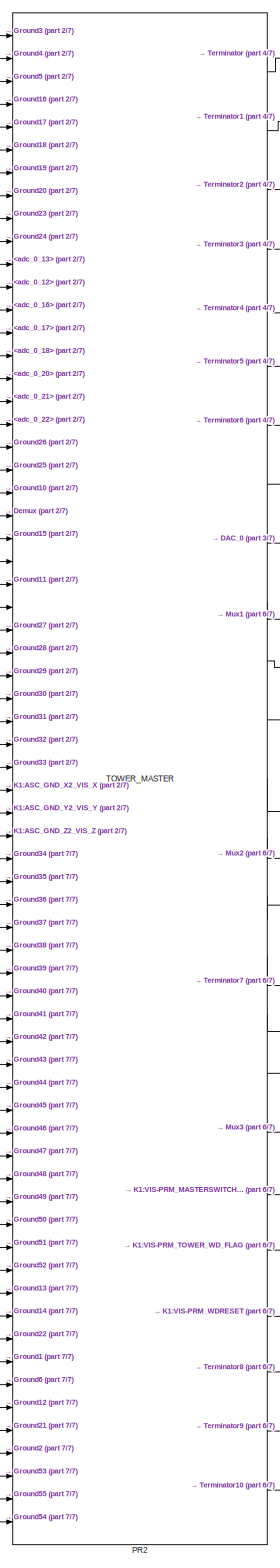
[diagram: root canvas - part 1/7, left side, full height]
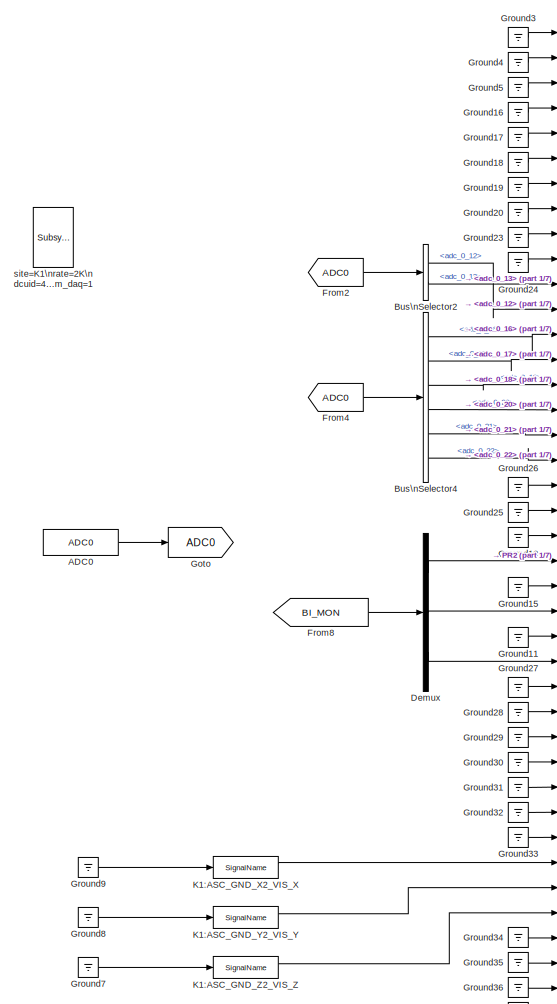
[diagram: root canvas - part 2/7, top left region]
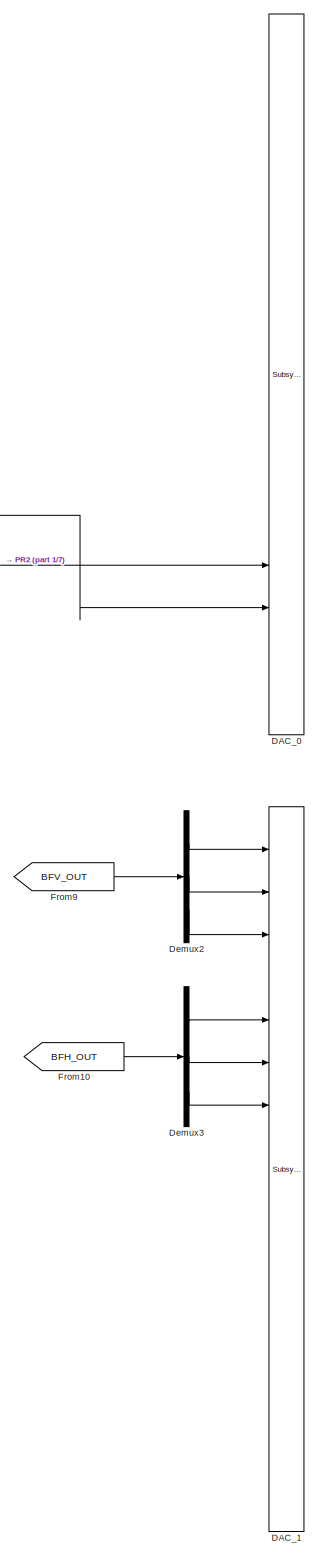
[diagram: root canvas - part 3/7, center side, full height]
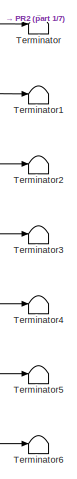
[diagram: root canvas - part 4/7, top left region]
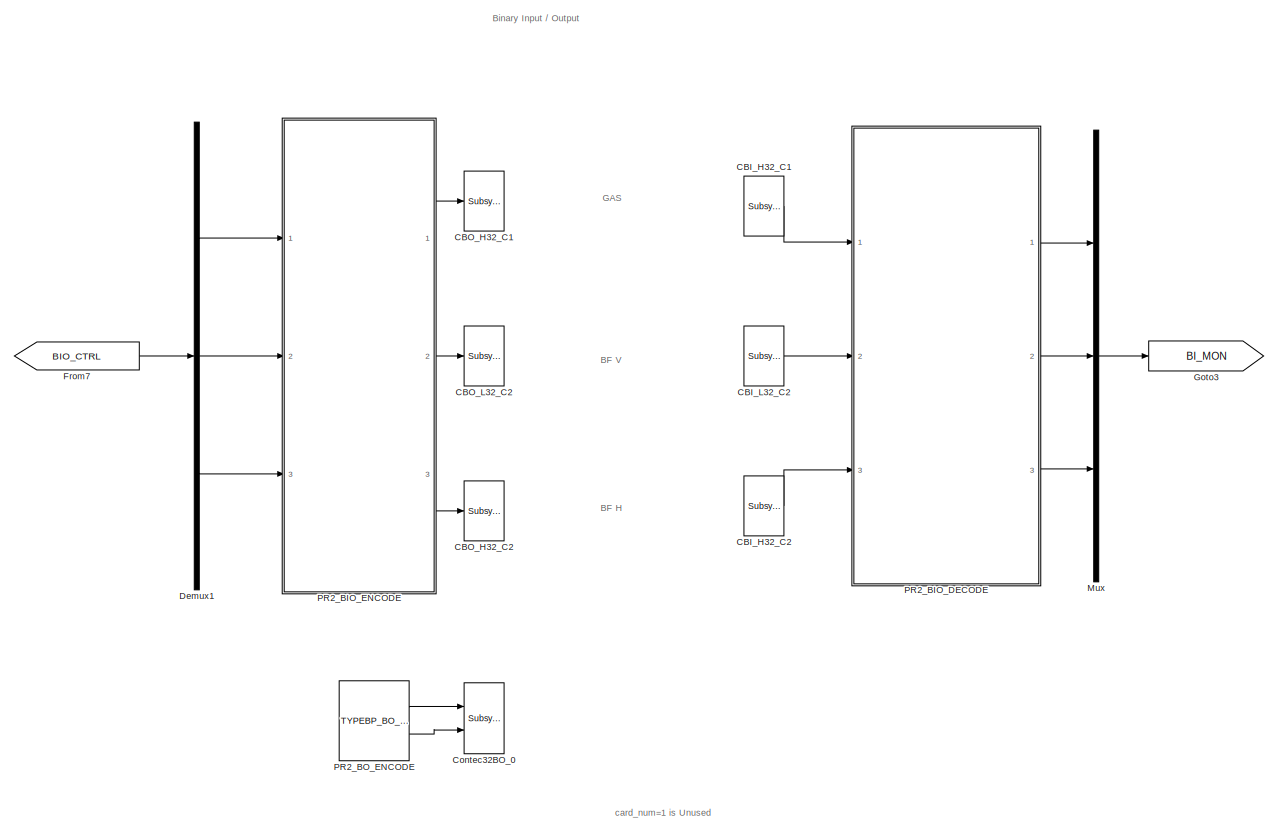
[diagram: root canvas - part 5/7, middle right region]
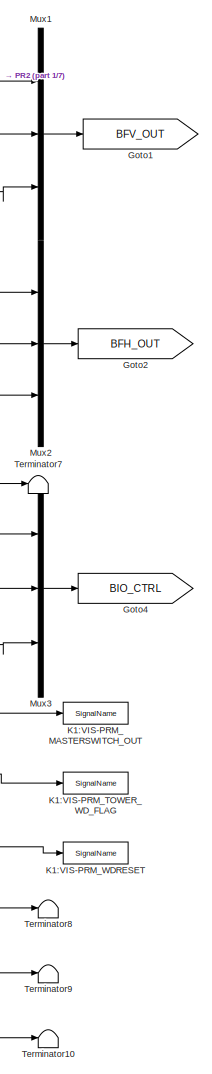
[diagram: root canvas - part 6/7, central region]
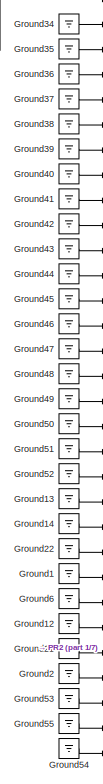
[diagram: root canvas - part 7/7, bottom left region]
MODEL k1vispr2t
KIND model
BLOCK [Reference] ADC0  REF=cdsAdcx0/ADC0
  AttributesFormatString = %<Description>\\n%<Tag>
  Description = type-GSC_16AI64SSA\ncard_num=0
  Ports = [0, 1]
  SID = 5115
  SourceBlock = cdsAdcx0/ADC0
  SourceType = SubSystem
  Tag = cdsAdc
BLOCK [BusSelector] Bus\nSelector2
  AttributesFormatString = %<Description>
  Description = ADC Selector
  OutputSignals = adc_0_12,adc_0_13
  Ports = [1, 2]
  SID = 5241
BLOCK [BusSelector] Bus\nSelector4
  AttributesFormatString = %<Description>
  Description = ADC Selector
  OutputSignals = adc_0_16,adc_0_17,adc_0_18,adc_0_20,adc_0_21,adc_0_22
  Ports = [1, 6]
  SID = 5243
BLOCK [Reference] CBI_H32_C1  REF=cdsCDI64/Subsystem
  AttributesFormatString = %<Tag>\\n%<Description>
  Description = card_num=3
  Ports = [0, 1]
  SID = 5272
  SourceBlock = cdsCDI64/Subsystem
  SourceType = SubSystem
  Tag = cdsCDI64
BLOCK [Reference] CBI_H32_C2  REF=cdsCDI64/Subsystem
  AttributesFormatString = %<Tag>\\n%<Description>
  Description = card_num=5
  Ports = [0, 1]
  SID = 5273
  SourceBlock = cdsCDI64/Subsystem
  SourceType = SubSystem
  Tag = cdsCDI64
BLOCK [Reference] CBI_L32_C2  REF=cdsCDI64/Subsystem
  AttributesFormatString = %<Tag>\\n%<Description>
  Description = card_num=4
  Ports = [0, 1]
  SID = 5275
  SourceBlock = cdsCDI64/Subsystem
  SourceType = SubSystem
  Tag = cdsCDI64
BLOCK [Reference] CBO_H32_C1  REF=cdsCDO64/Subsystem
  AttributesFormatString = %<Tag>\\n%<Description>
  Description = card_num=3
  Ports = [1]
  SID = 5277
  SourceBlock = cdsCDO64/Subsystem
  SourceType = SubSystem
  Tag = cdsCDO64
BLOCK [Reference] CBO_H32_C2  REF=cdsCDO64/Subsystem
  AttributesFormatString = %<Tag>\\n%<Description>
  Description = card_num=5
  Ports = [1]
  SID = 5278
  SourceBlock = cdsCDO64/Subsystem
  SourceType = SubSystem
  Tag = cdsCDO64
BLOCK [Reference] CBO_L32_C2  REF=cdsCDO64/Subsystem
  AttributesFormatString = %<Tag>\\n%<Description>
  Description = card_num=4
  Ports = [1]
  SID = 5280
  SourceBlock = cdsCDO64/Subsystem
  SourceType = SubSystem
  Tag = cdsCDO64
BLOCK [Reference] Contec32BO_0  REF=cdsCDO32/Subsystem
  AttributesFormatString = %<Tag>
  Description = Contec32 bit binary output module driver
  Ports = [2]
  SID = 5841
  SourceBlock = cdsCDO32/Subsystem
  SourceType = SubSystem
  Tag = cdsCDO32
BLOCK [Reference] DAC_0  REF=dac/Subsystem  (lib defined in slx_40ef132df75b, slx_b7657ccccc5b, +4 more)
  AttributesFormatString = %<Description>
  Description = type=GSC_16AO16,\ncard_num=0
  Ports = [16]
  SID = 5126
  SourceBlock = dac/Subsystem
  SourceType = SubSystem
BLOCK [Reference] DAC_1  REF=dac/Subsystem  (lib defined in slx_40ef132df75b, slx_b7657ccccc5b, +4 more)
  AttributesFormatString = %<Description>
  Description = type=GSC_16AO16,\ncard_num=1
  Ports = [16]
  SID = 5127
  SourceBlock = dac/Subsystem
  SourceType = SubSystem
BLOCK [Demux] Demux
  DisplayOption = bar
  Outputs = 3
  Ports = [1, 3]
  SID = 5246
BLOCK [Demux] Demux1
  DisplayOption = bar
  Outputs = 3
  Ports = [1, 3]
  SID = 5281
BLOCK [Demux] Demux2
  DisplayOption = bar
  Outputs = 3
  Ports = [1, 3]
  SID = 5236
BLOCK [Demux] Demux3
  DisplayOption = bar
  Outputs = 3
  Ports = [1, 3]
  SID = 5238
BLOCK [From] From10
  GotoTag = BFH_OUT
  SID = 5239
BLOCK [From] From2
  GotoTag = ADC0
  SID = 5248
BLOCK [From] From4
  GotoTag = ADC0
  SID = 5250
BLOCK [From] From7
  GotoTag = BIO_CTRL
  SID = 5282
BLOCK [From] From8
  GotoTag = BI_MON
  SID = 5253
BLOCK [From] From9
  GotoTag = BFV_OUT
  SID = 5237
BLOCK [Goto] Goto
  GotoTag = ADC0
  SID = 5134
BLOCK [Goto] Goto1
  GotoTag = BFV_OUT
  SID = 5265
BLOCK [Goto] Goto2
  GotoTag = BFH_OUT
  SID = 5266
BLOCK [Goto] Goto3
  GotoTag = BI_MON
  SID = 5283
BLOCK [Goto] Goto4
  GotoTag = BIO_CTRL
  SID = 5267
BLOCK [Ground] Ground1
  SID = 6658
BLOCK [Ground] Ground10
  SID = 5255
BLOCK [Ground] Ground11
  SID = 5256
BLOCK [Ground] Ground12
  SID = 6660
BLOCK [Ground] Ground13
  SID = 6661
BLOCK [Ground] Ground14
  SID = 6662
BLOCK [Ground] Ground15
  SID = 5264
BLOCK [Ground] Ground16
  SID = 6671
BLOCK [Ground] Ground17
  SID = 6672
BLOCK [Ground] Ground18
  SID = 6673
BLOCK [Ground] Ground19
  SID = 6674
BLOCK [Ground] Ground2
  SID = 5914
BLOCK [Ground] Ground20
  SID = 6675
BLOCK [Ground] Ground21
  SID = 5915
BLOCK [Ground] Ground22
  SID = 6663
BLOCK [Ground] Ground23
  SID = 6676
BLOCK [Ground] Ground24
  SID = 6677
BLOCK [Ground] Ground25
  SID = 6678
BLOCK [Ground] Ground26
  SID = 6679
BLOCK [Ground] Ground27
  SID = 6680
BLOCK [Ground] Ground28
  SID = 6681
BLOCK [Ground] Ground29
  SID = 6682
BLOCK [Ground] Ground3
  SID = 6668
BLOCK [Ground] Ground30
  SID = 6683
BLOCK [Ground] Ground31
  SID = 6684
BLOCK [Ground] Ground32
  SID = 6685
BLOCK [Ground] Ground33
  SID = 6686
BLOCK [Ground] Ground34
  SID = 6687
BLOCK [Ground] Ground35
  SID = 6688
BLOCK [Ground] Ground36
  SID = 6689
BLOCK [Ground] Ground37
  SID = 6690
BLOCK [Ground] Ground38
  SID = 6691
BLOCK [Ground] Ground39
  SID = 6692
BLOCK [Ground] Ground4
  SID = 6669
BLOCK [Ground] Ground40
  SID = 6693
BLOCK [Ground] Ground41
  SID = 6694
BLOCK [Ground] Ground42
  SID = 6695
BLOCK [Ground] Ground43
  SID = 6696
BLOCK [Ground] Ground44
  SID = 6697
BLOCK [Ground] Ground45
  SID = 6698
BLOCK [Ground] Ground46
  SID = 6699
BLOCK [Ground] Ground47
  SID = 6700
BLOCK [Ground] Ground48
  SID = 6701
BLOCK [Ground] Ground49
  SID = 6702
BLOCK [Ground] Ground5
  SID = 6670
BLOCK [Ground] Ground50
  SID = 6703
BLOCK [Ground] Ground51
  SID = 6704
BLOCK [Ground] Ground52
  SID = 6705
BLOCK [Ground] Ground53
  SID = 6714
BLOCK [Ground] Ground54
  SID = 6715
BLOCK [Ground] Ground55
  SID = 6716
BLOCK [Ground] Ground6
  SID = 6659
BLOCK [Ground] Ground7
  SID = 5822
BLOCK [Ground] Ground8
  SID = 5823
BLOCK [Ground] Ground9
  SID = 5824
BLOCK [Reference] K1:ASC_GND_X2_VIS_X  REF=cdsIPCx/SignalName
  AttributesFormatString = %<Tag>
  Description = Inter-Process Communication via PCI Express network.
  Ports = [1, 2]
  SID = 5828
  SourceBlock = cdsIPCx/SignalName
  SourceType = SubSystem
  Tag = cdsIPCx_PCIE
BLOCK [Reference] K1:ASC_GND_Y2_VIS_Y  REF=cdsIPCx/SignalName
  AttributesFormatString = %<Tag>
  Description = Inter-Process Communication via PCI Express network.
  Ports = [1, 2]
  SID = 5829
  SourceBlock = cdsIPCx/SignalName
  SourceType = SubSystem
  Tag = cdsIPCx_PCIE
BLOCK [Reference] K1:ASC_GND_Z2_VIS_Z  REF=cdsIPCx/SignalName
  AttributesFormatString = %<Tag>
  Description = Inter-Process Communication via PCI Express network.
  Ports = [1, 2]
  SID = 5830
  SourceBlock = cdsIPCx/SignalName
  SourceType = SubSystem
  Tag = cdsIPCx_PCIE
BLOCK [Reference] K1:VIS-PRM_MASTERSWITCH_OUT  REF=cdsIPCx/SignalName
  AttributesFormatString = %<Tag>
  Description = Inter-Process Communication via Shared memory.
  Ports = [1, 2]
  SID = 6664
  SourceBlock = cdsIPCx/SignalName
  SourceType = SubSystem
  Tag = cdsIPCx_SHMEM
BLOCK [Reference] K1:VIS-PRM_TOWER_WD_FLAG  REF=cdsIPCx/SignalName
  AttributesFormatString = %<Tag>
  Description = Inter-Process Communication via Shared memory.
  Ports = [1, 2]
  SID = 6665
  SourceBlock = cdsIPCx/SignalName
  SourceType = SubSystem
  Tag = cdsIPCx_SHMEM
BLOCK [Reference] K1:VIS-PRM_WDRESET  REF=cdsIPCx/SignalName
  AttributesFormatString = %<Tag>
  Description = Inter-Process Communication via Shared memory.
  Ports = [1, 2]
  SID = 6666
  SourceBlock = cdsIPCx/SignalName
  SourceType = SubSystem
  Tag = cdsIPCx_SHMEM
BLOCK [Mux] Mux
  DisplayOption = bar
  Inputs = 3
  Ports = [3, 1]
  SID = 5285
BLOCK [Mux] Mux1
  DisplayOption = bar
  Inputs = 3
  Ports = [3, 1]
  SID = 5268
BLOCK [Mux] Mux2
  DisplayOption = bar
  Inputs = 3
  Ports = [3, 1]
  SID = 5269
BLOCK [Mux] Mux3
  DisplayOption = bar
  Inputs = 3
  Ports = [3, 1]
  SID = 5270
BLOCK [Reference] PR2  REF=TOWER_MASTER/TOWER_MASTER
  Ports = [66, 25]
  SID = 6667
  SourceBlock = TOWER_MASTER/TOWER_MASTER
  SourceType = SubSystem
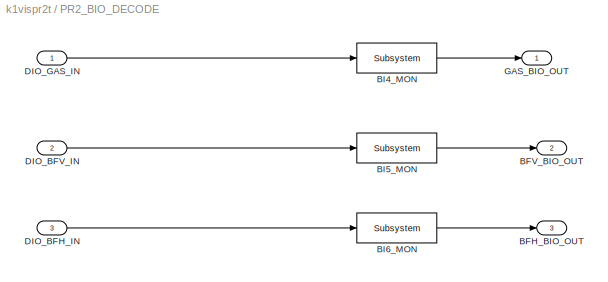
BLOCK [SubSystem] PR2_BIO_DECODE
  Ports = [3, 3]
  RequestExecContextInheritance = off
  SID = 5286
  Variant = off
BLOCK [Outport] PR2_BIO_DECODE/BFH_BIO_OUT
  IconDisplay = Port number
  Port = 3
  SID = 5304
BLOCK [Outport] PR2_BIO_DECODE/BFV_BIO_OUT
  IconDisplay = Port number
  Port = 2
  SID = 5303
BLOCK [Reference] PR2_BIO_DECODE/BI4_MON  REF=cdsEpicsOut/Subsystem
  AttributesFormatString = %<Tag>
  Description = Purpose:                                          \nOutput a FE signal to an EPICS channel.           \n                                                  \nOperation:                                        \nTakes input value and passes it to EPICS record.  \n                                                  \nUsage:                                            \nName the part with the desired EPICS...<+14ch>  <repeated x6 — deduplicated; at blocks: BI4_MON, BI5_MON, BI6_MON, DIO_3_OUT, DIO_4_OUT, DIO_4_OUT1>
  Ports = [1, 1]
  SID = 5296
  SourceBlock = cdsEpicsOut/Subsystem
  SourceType = SubSystem
  Tag = cdsEpicsOutput
BLOCK [Reference] PR2_BIO_DECODE/BI5_MON  REF=cdsEpicsOut/Subsystem
  AttributesFormatString = %<Tag>
  Ports = [1, 1]
  SID = 5297
  SourceBlock = cdsEpicsOut/Subsystem
  SourceType = SubSystem
  Tag = cdsEpicsOutput
BLOCK [Reference] PR2_BIO_DECODE/BI6_MON  REF=cdsEpicsOut/Subsystem
  AttributesFormatString = %<Tag>
  Ports = [1, 1]
  SID = 5298
  SourceBlock = cdsEpicsOut/Subsystem
  SourceType = SubSystem
  Tag = cdsEpicsOutput
BLOCK [Inport] PR2_BIO_DECODE/DIO_BFH_IN
  IconDisplay = Port number
  Port = 3
  SID = 5292
BLOCK [Inport] PR2_BIO_DECODE/DIO_BFV_IN
  IconDisplay = Port number
  Port = 2
  SID = 5291
BLOCK [Inport] PR2_BIO_DECODE/DIO_GAS_IN
  IconDisplay = Port number
  SID = 5290
BLOCK [Outport] PR2_BIO_DECODE/GAS_BIO_OUT
  IconDisplay = Port number
  SID = 5302
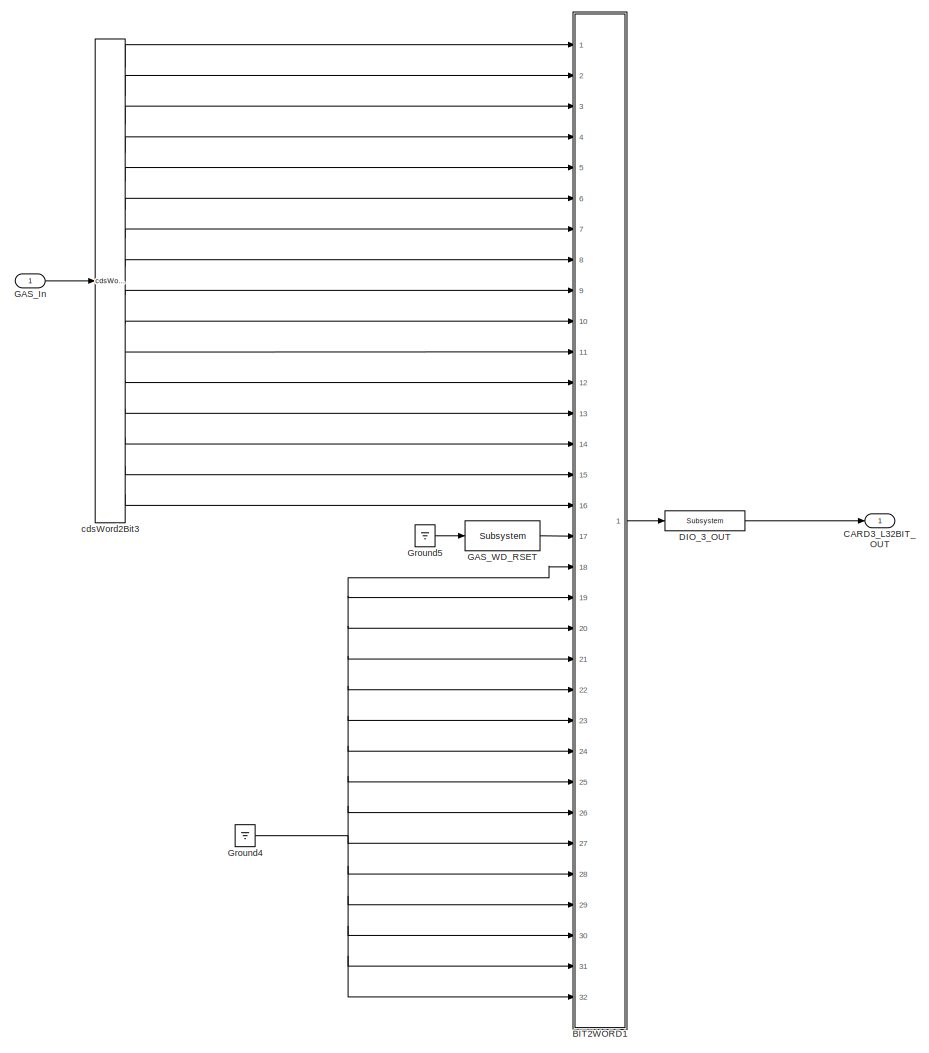
[diagram: PR2_BIO_ENCODE - part 1/3, top right region]
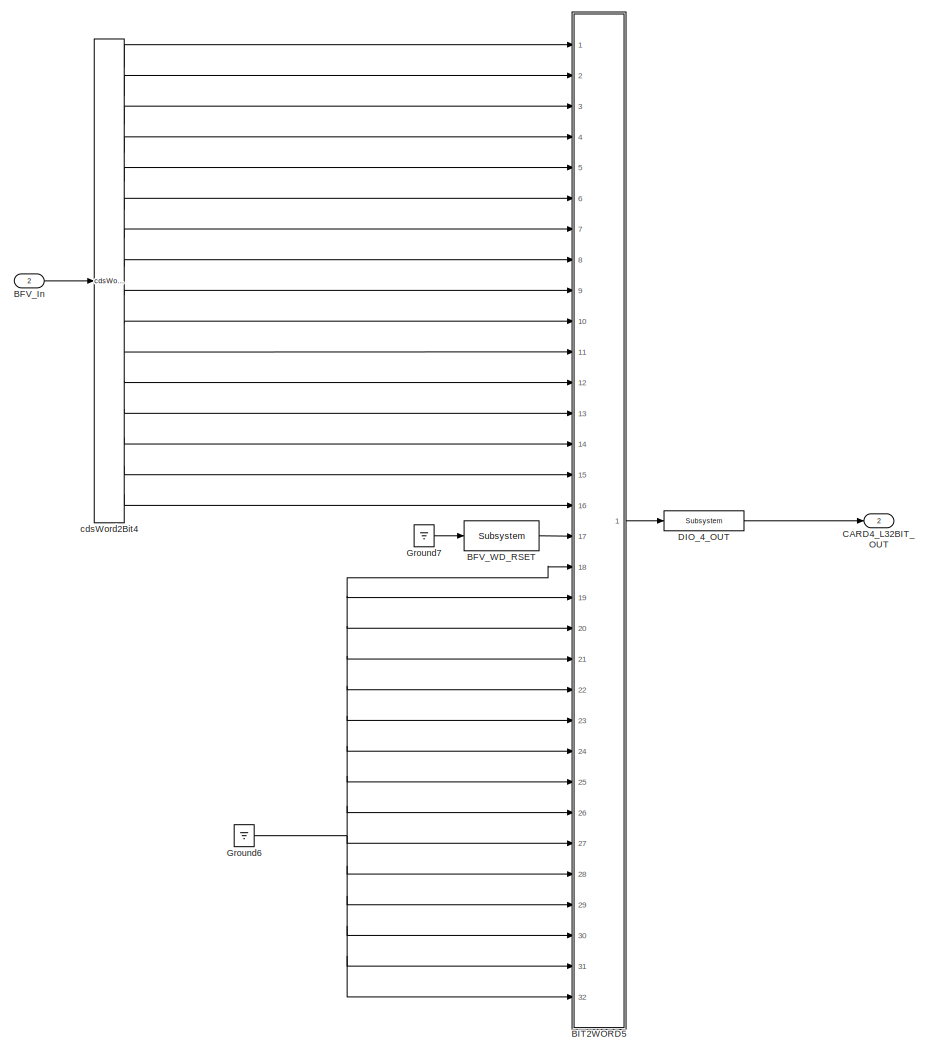
[diagram: PR2_BIO_ENCODE - part 2/3, bottom right region]
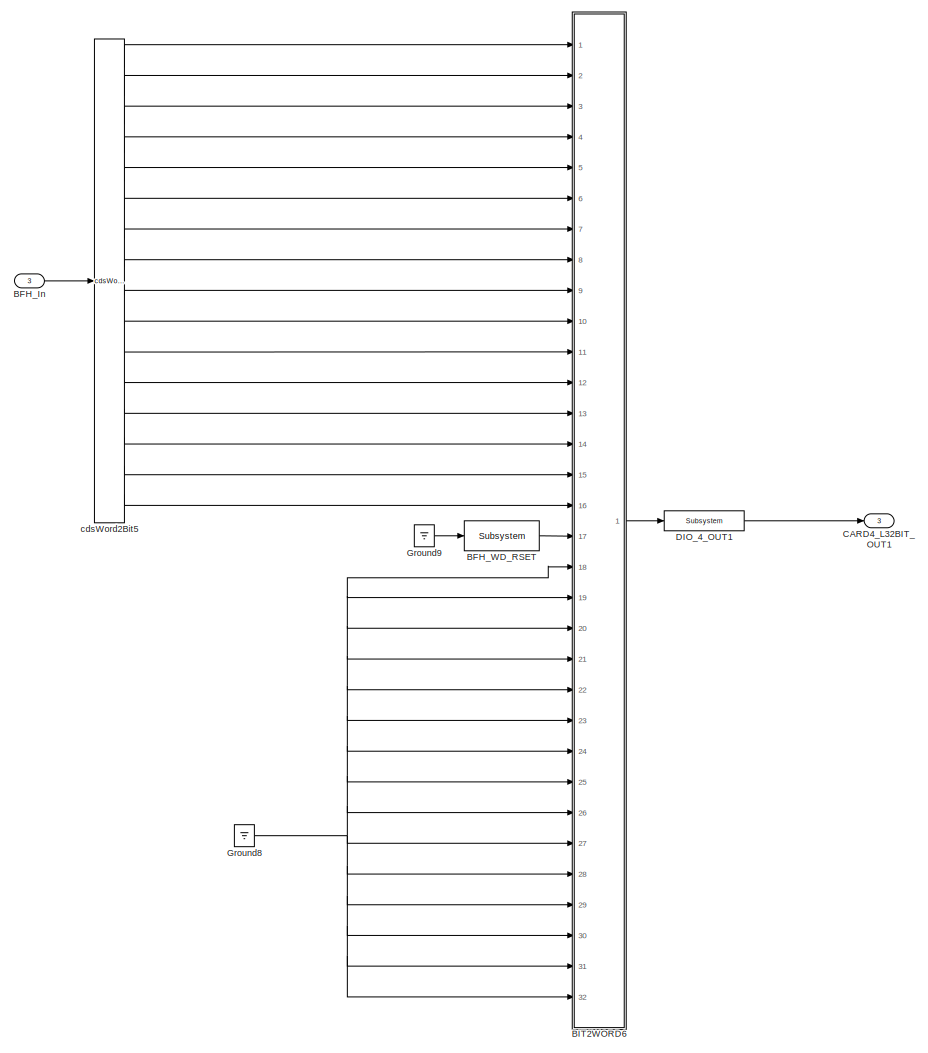
[diagram: PR2_BIO_ENCODE - part 3/3, bottom left region]
BLOCK [SubSystem] PR2_BIO_ENCODE
  Ports = [3, 3]
  RequestExecContextInheritance = off
  SID = 5305
  Variant = off
BLOCK [Inport] PR2_BIO_ENCODE/BFH_In
  IconDisplay = Port number
  Port = 3
  SID = 5311
BLOCK [Reference] PR2_BIO_ENCODE/BFH_WD_RSET  REF=cdsEpicsBinIn/Subsystem
  AttributesFormatString = %<Tag>
  Description = Purpose:                                                                            \nCreate an EPICS binary (0 or 1) input channel to the FE realtime controls.          \n                                                                                    \nOperation:                                                                          \nOutputs value from an EPICS ai record. Value is binary i...<+252ch>  <repeated x3 — deduplicated; at blocks: BFH_WD_RSET, BFV_WD_RSET, GAS_WD_RSET>
  Ports = [1, 1]
  SID = 5312
  SourceBlock = cdsEpicsBinIn/Subsystem
  SourceType = SubSystem
  Tag = cdsEpicsBinIn
BLOCK [Inport] PR2_BIO_ENCODE/BFV_In
  IconDisplay = Port number
  Port = 2
  SID = 5310
BLOCK [Reference] PR2_BIO_ENCODE/BFV_WD_RSET  REF=cdsEpicsBinIn/Subsystem
  AttributesFormatString = %<Tag>
  Ports = [1, 1]
  SID = 5313
  SourceBlock = cdsEpicsBinIn/Subsystem
  SourceType = SubSystem
  Tag = cdsEpicsBinIn
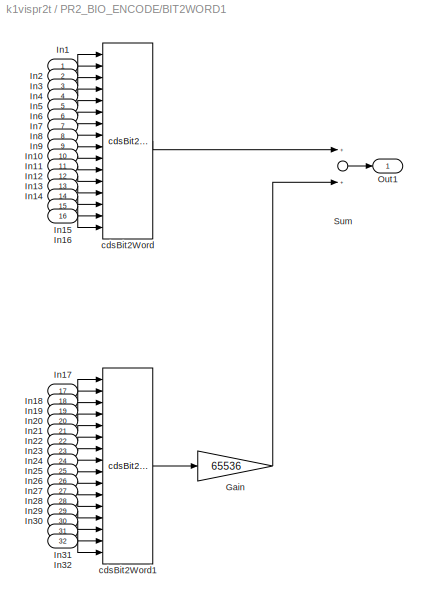
BLOCK [SubSystem] PR2_BIO_ENCODE/BIT2WORD1
  Ports = [32, 1]
  RequestExecContextInheritance = off
  SID = 5314
  Variant = off
BLOCK [Gain] PR2_BIO_ENCODE/BIT2WORD1/Gain
  Gain = 65536
  OutDataTypeStr = Inherit: Inherit via internal rule
  ParamDataTypeStr = Inherit: Inherit via internal rule
  SID = 5347
  SaturateOnIntegerOverflow = off
BLOCK [Inport] PR2_BIO_ENCODE/BIT2WORD1/In1
  IconDisplay = Port number
  SID = 5315
BLOCK [Inport] PR2_BIO_ENCODE/BIT2WORD1/In10
  IconDisplay = Port number
  Port = 10
  SID = 5324
BLOCK [Inport] PR2_BIO_ENCODE/BIT2WORD1/In11
  IconDisplay = Port number
  Port = 11
  SID = 5325
BLOCK [Inport] PR2_BIO_ENCODE/BIT2WORD1/In12
  IconDisplay = Port number
  Port = 12
  SID = 5326
BLOCK [Inport] PR2_BIO_ENCODE/BIT2WORD1/In13
  IconDisplay = Port number
  Port = 13
  SID = 5327
BLOCK [Inport] PR2_BIO_ENCODE/BIT2WORD1/In14
  IconDisplay = Port number
  Port = 14
  SID = 5328
BLOCK [Inport] PR2_BIO_ENCODE/BIT2WORD1/In15
  IconDisplay = Port number
  Port = 15
  SID = 5329
BLOCK [Inport] PR2_BIO_ENCODE/BIT2WORD1/In16
  IconDisplay = Port number
  Port = 16
  SID = 5330
BLOCK [Inport] PR2_BIO_ENCODE/BIT2WORD1/In17
  IconDisplay = Port number
  Port = 17
  SID = 5331
BLOCK [Inport] PR2_BIO_ENCODE/BIT2WORD1/In18
  IconDisplay = Port number
  Port = 18
  SID = 5332
BLOCK [Inport] PR2_BIO_ENCODE/BIT2WORD1/In19
  IconDisplay = Port number
  Port = 19
  SID = 5333
BLOCK [Inport] PR2_BIO_ENCODE/BIT2WORD1/In2
  IconDisplay = Port number
  Port = 2
  SID = 5316
BLOCK [Inport] PR2_BIO_ENCODE/BIT2WORD1/In20
  IconDisplay = Port number
  Port = 20
  SID = 5334
BLOCK [Inport] PR2_BIO_ENCODE/BIT2WORD1/In21
  IconDisplay = Port number
  Port = 21
  SID = 5335
BLOCK [Inport] PR2_BIO_ENCODE/BIT2WORD1/In22
  IconDisplay = Port number
  Port = 22
  SID = 5336
BLOCK [Inport] PR2_BIO_ENCODE/BIT2WORD1/In23
  IconDisplay = Port number
  Port = 23
  SID = 5337
BLOCK [Inport] PR2_BIO_ENCODE/BIT2WORD1/In24
  IconDisplay = Port number
  Port = 24
  SID = 5338
BLOCK [Inport] PR2_BIO_ENCODE/BIT2WORD1/In25
  IconDisplay = Port number
  Port = 25
  SID = 5339
BLOCK [Inport] PR2_BIO_ENCODE/BIT2WORD1/In26
  IconDisplay = Port number
  Port = 26
  SID = 5340
BLOCK [Inport] PR2_BIO_ENCODE/BIT2WORD1/In27
  IconDisplay = Port number
  Port = 27
  SID = 5341
BLOCK [Inport] PR2_BIO_ENCODE/BIT2WORD1/In28
  IconDisplay = Port number
  Port = 28
  SID = 5342
BLOCK [Inport] PR2_BIO_ENCODE/BIT2WORD1/In29
  IconDisplay = Port number
  Port = 29
  SID = 5343
BLOCK [Inport] PR2_BIO_ENCODE/BIT2WORD1/In3
  IconDisplay = Port number
  Port = 3
  SID = 5317
BLOCK [Inport] PR2_BIO_ENCODE/BIT2WORD1/In30
  IconDisplay = Port number
  Port = 30
  SID = 5344
BLOCK [Inport] PR2_BIO_ENCODE/BIT2WORD1/In31
  IconDisplay = Port number
  Port = 31
  SID = 5345
BLOCK [Inport] PR2_BIO_ENCODE/BIT2WORD1/In32
  IconDisplay = Port number
  Port = 32
  SID = 5346
BLOCK [Inport] PR2_BIO_ENCODE/BIT2WORD1/In4
  IconDisplay = Port number
  Port = 4
  SID = 5318
BLOCK [Inport] PR2_BIO_ENCODE/BIT2WORD1/In5
  IconDisplay = Port number
  Port = 5
  SID = 5319
BLOCK [Inport] PR2_BIO_ENCODE/BIT2WORD1/In6
  IconDisplay = Port number
  Port = 6
  SID = 5320
BLOCK [Inport] PR2_BIO_ENCODE/BIT2WORD1/In7
  IconDisplay = Port number
  Port = 7
  SID = 5321
BLOCK [Inport] PR2_BIO_ENCODE/BIT2WORD1/In8
  IconDisplay = Port number
  Port = 8
  SID = 5322
BLOCK [Inport] PR2_BIO_ENCODE/BIT2WORD1/In9
  IconDisplay = Port number
  Port = 9
  SID = 5323
BLOCK [Outport] PR2_BIO_ENCODE/BIT2WORD1/Out1
  IconDisplay = Port number
  SID = 5351
BLOCK [Sum] PR2_BIO_ENCODE/BIT2WORD1/Sum
  InputSameDT = off
  OutDataTypeStr = Inherit: Inherit via internal rule
  Ports = [2, 1]
  SID = 5348
  SaturateOnIntegerOverflow = off
BLOCK [Reference] PR2_BIO_ENCODE/BIT2WORD1/cdsBit2Word  REF=cdsBit2Word/cdsBit2Word
  AttributesFormatString = %<Tag>
  Description = Forms single 16 bit integer from 16 0/1 inputs.
  Ports = [16, 1]
  SID = 5349
  SourceBlock = cdsBit2Word/cdsBit2Word
  SourceType = SubSystem
  Tag = cdsBit2Word
BLOCK [Reference] PR2_BIO_ENCODE/BIT2WORD1/cdsBit2Word1  REF=cdsBit2Word/cdsBit2Word
  AttributesFormatString = %<Tag>
  Description = Forms single 16 bit integer from 16 0/1 inputs.
  Ports = [16, 1]
  SID = 5350
  SourceBlock = cdsBit2Word/cdsBit2Word
  SourceType = SubSystem
  Tag = cdsBit2Word
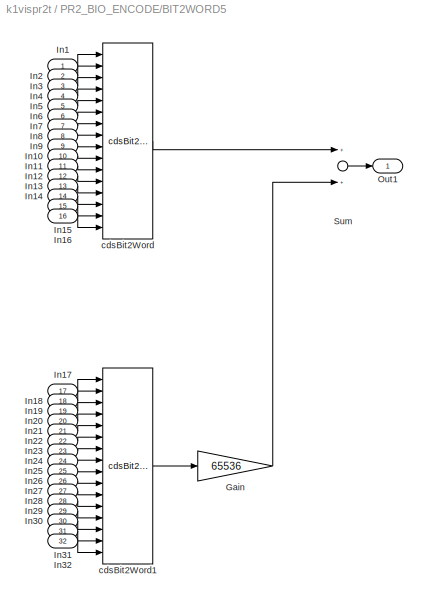
BLOCK [SubSystem] PR2_BIO_ENCODE/BIT2WORD5
  Ports = [32, 1]
  RequestExecContextInheritance = off
  SID = 5466
  Variant = off
BLOCK [Gain] PR2_BIO_ENCODE/BIT2WORD5/Gain
  Gain = 65536
  OutDataTypeStr = Inherit: Inherit via internal rule
  ParamDataTypeStr = Inherit: Inherit via internal rule
  SID = 5499
  SaturateOnIntegerOverflow = off
BLOCK [Inport] PR2_BIO_ENCODE/BIT2WORD5/In1
  IconDisplay = Port number
  SID = 5467
BLOCK [Inport] PR2_BIO_ENCODE/BIT2WORD5/In10
  IconDisplay = Port number
  Port = 10
  SID = 5476
BLOCK [Inport] PR2_BIO_ENCODE/BIT2WORD5/In11
  IconDisplay = Port number
  Port = 11
  SID = 5477
BLOCK [Inport] PR2_BIO_ENCODE/BIT2WORD5/In12
  IconDisplay = Port number
  Port = 12
  SID = 5478
BLOCK [Inport] PR2_BIO_ENCODE/BIT2WORD5/In13
  IconDisplay = Port number
  Port = 13
  SID = 5479
BLOCK [Inport] PR2_BIO_ENCODE/BIT2WORD5/In14
  IconDisplay = Port number
  Port = 14
  SID = 5480
BLOCK [Inport] PR2_BIO_ENCODE/BIT2WORD5/In15
  IconDisplay = Port number
  Port = 15
  SID = 5481
BLOCK [Inport] PR2_BIO_ENCODE/BIT2WORD5/In16
  IconDisplay = Port number
  Port = 16
  SID = 5482
BLOCK [Inport] PR2_BIO_ENCODE/BIT2WORD5/In17
  IconDisplay = Port number
  Port = 17
  SID = 5483
BLOCK [Inport] PR2_BIO_ENCODE/BIT2WORD5/In18
  IconDisplay = Port number
  Port = 18
  SID = 5484
BLOCK [Inport] PR2_BIO_ENCODE/BIT2WORD5/In19
  IconDisplay = Port number
  Port = 19
  SID = 5485
BLOCK [Inport] PR2_BIO_ENCODE/BIT2WORD5/In2
  IconDisplay = Port number
  Port = 2
  SID = 5468
BLOCK [Inport] PR2_BIO_ENCODE/BIT2WORD5/In20
  IconDisplay = Port number
  Port = 20
  SID = 5486
BLOCK [Inport] PR2_BIO_ENCODE/BIT2WORD5/In21
  IconDisplay = Port number
  Port = 21
  SID = 5487
BLOCK [Inport] PR2_BIO_ENCODE/BIT2WORD5/In22
  IconDisplay = Port number
  Port = 22
  SID = 5488
BLOCK [Inport] PR2_BIO_ENCODE/BIT2WORD5/In23
  IconDisplay = Port number
  Port = 23
  SID = 5489
BLOCK [Inport] PR2_BIO_ENCODE/BIT2WORD5/In24
  IconDisplay = Port number
  Port = 24
  SID = 5490
BLOCK [Inport] PR2_BIO_ENCODE/BIT2WORD5/In25
  IconDisplay = Port number
  Port = 25
  SID = 5491
BLOCK [Inport] PR2_BIO_ENCODE/BIT2WORD5/In26
  IconDisplay = Port number
  Port = 26
  SID = 5492
BLOCK [Inport] PR2_BIO_ENCODE/BIT2WORD5/In27
  IconDisplay = Port number
  Port = 27
  SID = 5493
BLOCK [Inport] PR2_BIO_ENCODE/BIT2WORD5/In28
  IconDisplay = Port number
  Port = 28
  SID = 5494
BLOCK [Inport] PR2_BIO_ENCODE/BIT2WORD5/In29
  IconDisplay = Port number
  Port = 29
  SID = 5495
BLOCK [Inport] PR2_BIO_ENCODE/BIT2WORD5/In3
  IconDisplay = Port number
  Port = 3
  SID = 5469
BLOCK [Inport] PR2_BIO_ENCODE/BIT2WORD5/In30
  IconDisplay = Port number
  Port = 30
  SID = 5496
BLOCK [Inport] PR2_BIO_ENCODE/BIT2WORD5/In31
  IconDisplay = Port number
  Port = 31
  SID = 5497
BLOCK [Inport] PR2_BIO_ENCODE/BIT2WORD5/In32
  IconDisplay = Port number
  Port = 32
  SID = 5498
BLOCK [Inport] PR2_BIO_ENCODE/BIT2WORD5/In4
  IconDisplay = Port number
  Port = 4
  SID = 5470
BLOCK [Inport] PR2_BIO_ENCODE/BIT2WORD5/In5
  IconDisplay = Port number
  Port = 5
  SID = 5471
BLOCK [Inport] PR2_BIO_ENCODE/BIT2WORD5/In6
  IconDisplay = Port number
  Port = 6
  SID = 5472
BLOCK [Inport] PR2_BIO_ENCODE/BIT2WORD5/In7
  IconDisplay = Port number
  Port = 7
  SID = 5473
BLOCK [Inport] PR2_BIO_ENCODE/BIT2WORD5/In8
  IconDisplay = Port number
  Port = 8
  SID = 5474
BLOCK [Inport] PR2_BIO_ENCODE/BIT2WORD5/In9
  IconDisplay = Port number
  Port = 9
  SID = 5475
BLOCK [Outport] PR2_BIO_ENCODE/BIT2WORD5/Out1
  IconDisplay = Port number
  SID = 5503
BLOCK [Sum] PR2_BIO_ENCODE/BIT2WORD5/Sum
  InputSameDT = off
  OutDataTypeStr = Inherit: Inherit via internal rule
  Ports = [2, 1]
  SID = 5500
  SaturateOnIntegerOverflow = off
BLOCK [Reference] PR2_BIO_ENCODE/BIT2WORD5/cdsBit2Word  REF=cdsBit2Word/cdsBit2Word
  AttributesFormatString = %<Tag>
  Description = Forms single 16 bit integer from 16 0/1 inputs.
  Ports = [16, 1]
  SID = 5501
  SourceBlock = cdsBit2Word/cdsBit2Word
  SourceType = SubSystem
  Tag = cdsBit2Word
BLOCK [Reference] PR2_BIO_ENCODE/BIT2WORD5/cdsBit2Word1  REF=cdsBit2Word/cdsBit2Word
  AttributesFormatString = %<Tag>
  Description = Forms single 16 bit integer from 16 0/1 inputs.
  Ports = [16, 1]
  SID = 5502
  SourceBlock = cdsBit2Word/cdsBit2Word
  SourceType = SubSystem
  Tag = cdsBit2Word
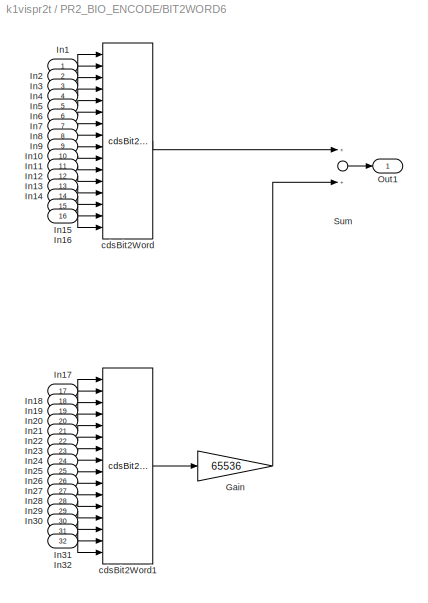
BLOCK [SubSystem] PR2_BIO_ENCODE/BIT2WORD6
  Ports = [32, 1]
  RequestExecContextInheritance = off
  SID = 5504
  Variant = off
BLOCK [Gain] PR2_BIO_ENCODE/BIT2WORD6/Gain
  Gain = 65536
  OutDataTypeStr = Inherit: Inherit via internal rule
  ParamDataTypeStr = Inherit: Inherit via internal rule
  SID = 5537
  SaturateOnIntegerOverflow = off
BLOCK [Inport] PR2_BIO_ENCODE/BIT2WORD6/In1
  IconDisplay = Port number
  SID = 5505
BLOCK [Inport] PR2_BIO_ENCODE/BIT2WORD6/In10
  IconDisplay = Port number
  Port = 10
  SID = 5514
BLOCK [Inport] PR2_BIO_ENCODE/BIT2WORD6/In11
  IconDisplay = Port number
  Port = 11
  SID = 5515
BLOCK [Inport] PR2_BIO_ENCODE/BIT2WORD6/In12
  IconDisplay = Port number
  Port = 12
  SID = 5516
BLOCK [Inport] PR2_BIO_ENCODE/BIT2WORD6/In13
  IconDisplay = Port number
  Port = 13
  SID = 5517
BLOCK [Inport] PR2_BIO_ENCODE/BIT2WORD6/In14
  IconDisplay = Port number
  Port = 14
  SID = 5518
BLOCK [Inport] PR2_BIO_ENCODE/BIT2WORD6/In15
  IconDisplay = Port number
  Port = 15
  SID = 5519
BLOCK [Inport] PR2_BIO_ENCODE/BIT2WORD6/In16
  IconDisplay = Port number
  Port = 16
  SID = 5520
BLOCK [Inport] PR2_BIO_ENCODE/BIT2WORD6/In17
  IconDisplay = Port number
  Port = 17
  SID = 5521
BLOCK [Inport] PR2_BIO_ENCODE/BIT2WORD6/In18
  IconDisplay = Port number
  Port = 18
  SID = 5522
BLOCK [Inport] PR2_BIO_ENCODE/BIT2WORD6/In19
  IconDisplay = Port number
  Port = 19
  SID = 5523
BLOCK [Inport] PR2_BIO_ENCODE/BIT2WORD6/In2
  IconDisplay = Port number
  Port = 2
  SID = 5506
BLOCK [Inport] PR2_BIO_ENCODE/BIT2WORD6/In20
  IconDisplay = Port number
  Port = 20
  SID = 5524
BLOCK [Inport] PR2_BIO_ENCODE/BIT2WORD6/In21
  IconDisplay = Port number
  Port = 21
  SID = 5525
BLOCK [Inport] PR2_BIO_ENCODE/BIT2WORD6/In22
  IconDisplay = Port number
  Port = 22
  SID = 5526
BLOCK [Inport] PR2_BIO_ENCODE/BIT2WORD6/In23
  IconDisplay = Port number
  Port = 23
  SID = 5527
BLOCK [Inport] PR2_BIO_ENCODE/BIT2WORD6/In24
  IconDisplay = Port number
  Port = 24
  SID = 5528
BLOCK [Inport] PR2_BIO_ENCODE/BIT2WORD6/In25
  IconDisplay = Port number
  Port = 25
  SID = 5529
BLOCK [Inport] PR2_BIO_ENCODE/BIT2WORD6/In26
  IconDisplay = Port number
  Port = 26
  SID = 5530
BLOCK [Inport] PR2_BIO_ENCODE/BIT2WORD6/In27
  IconDisplay = Port number
  Port = 27
  SID = 5531
BLOCK [Inport] PR2_BIO_ENCODE/BIT2WORD6/In28
  IconDisplay = Port number
  Port = 28
  SID = 5532
BLOCK [Inport] PR2_BIO_ENCODE/BIT2WORD6/In29
  IconDisplay = Port number
  Port = 29
  SID = 5533
BLOCK [Inport] PR2_BIO_ENCODE/BIT2WORD6/In3
  IconDisplay = Port number
  Port = 3
  SID = 5507
BLOCK [Inport] PR2_BIO_ENCODE/BIT2WORD6/In30
  IconDisplay = Port number
  Port = 30
  SID = 5534
BLOCK [Inport] PR2_BIO_ENCODE/BIT2WORD6/In31
  IconDisplay = Port number
  Port = 31
  SID = 5535
BLOCK [Inport] PR2_BIO_ENCODE/BIT2WORD6/In32
  IconDisplay = Port number
  Port = 32
  SID = 5536
BLOCK [Inport] PR2_BIO_ENCODE/BIT2WORD6/In4
  IconDisplay = Port number
  Port = 4
  SID = 5508
BLOCK [Inport] PR2_BIO_ENCODE/BIT2WORD6/In5
  IconDisplay = Port number
  Port = 5
  SID = 5509
BLOCK [Inport] PR2_BIO_ENCODE/BIT2WORD6/In6
  IconDisplay = Port number
  Port = 6
  SID = 5510
BLOCK [Inport] PR2_BIO_ENCODE/BIT2WORD6/In7
  IconDisplay = Port number
  Port = 7
  SID = 5511
BLOCK [Inport] PR2_BIO_ENCODE/BIT2WORD6/In8
  IconDisplay = Port number
  Port = 8
  SID = 5512
BLOCK [Inport] PR2_BIO_ENCODE/BIT2WORD6/In9
  IconDisplay = Port number
  Port = 9
  SID = 5513
BLOCK [Outport] PR2_BIO_ENCODE/BIT2WORD6/Out1
  IconDisplay = Port number
  SID = 5541
BLOCK [Sum] PR2_BIO_ENCODE/BIT2WORD6/Sum
  InputSameDT = off
  OutDataTypeStr = Inherit: Inherit via internal rule
  Ports = [2, 1]
  SID = 5538
  SaturateOnIntegerOverflow = off
BLOCK [Reference] PR2_BIO_ENCODE/BIT2WORD6/cdsBit2Word  REF=cdsBit2Word/cdsBit2Word
  AttributesFormatString = %<Tag>
  Description = Forms single 16 bit integer from 16 0/1 inputs.
  Ports = [16, 1]
  SID = 5539
  SourceBlock = cdsBit2Word/cdsBit2Word
  SourceType = SubSystem
  Tag = cdsBit2Word
BLOCK [Reference] PR2_BIO_ENCODE/BIT2WORD6/cdsBit2Word1  REF=cdsBit2Word/cdsBit2Word
  AttributesFormatString = %<Tag>
  Description = Forms single 16 bit integer from 16 0/1 inputs.
  Ports = [16, 1]
  SID = 5540
  SourceBlock = cdsBit2Word/cdsBit2Word
  SourceType = SubSystem
  Tag = cdsBit2Word
BLOCK [Outport] PR2_BIO_ENCODE/CARD3_L32BIT_OUT
  IconDisplay = Port number
  SID = 5573
BLOCK [Outport] PR2_BIO_ENCODE/CARD4_L32BIT_OUT
  IconDisplay = Port number
  Port = 2
  SID = 5574
BLOCK [Outport] PR2_BIO_ENCODE/CARD4_L32BIT_OUT1
  IconDisplay = Port number
  Port = 3
  SID = 5575
BLOCK [Reference] PR2_BIO_ENCODE/DIO_3_OUT  REF=cdsEpicsOut/Subsystem
  AttributesFormatString = %<Tag>
  Ports = [1, 1]
  SID = 5545
  SourceBlock = cdsEpicsOut/Subsystem
  SourceType = SubSystem
  Tag = cdsEpicsOutput
BLOCK [Reference] PR2_BIO_ENCODE/DIO_4_OUT  REF=cdsEpicsOut/Subsystem
  AttributesFormatString = %<Tag>
  Ports = [1, 1]
  SID = 5546
  SourceBlock = cdsEpicsOut/Subsystem
  SourceType = SubSystem
  Tag = cdsEpicsOutput
BLOCK [Reference] PR2_BIO_ENCODE/DIO_4_OUT1  REF=cdsEpicsOut/Subsystem
  AttributesFormatString = %<Tag>
  Ports = [1, 1]
  SID = 5547
  SourceBlock = cdsEpicsOut/Subsystem
  SourceType = SubSystem
  Tag = cdsEpicsOutput
BLOCK [Inport] PR2_BIO_ENCODE/GAS_In
  IconDisplay = Port number
  SID = 5309
BLOCK [Reference] PR2_BIO_ENCODE/GAS_WD_RSET  REF=cdsEpicsBinIn/Subsystem
  AttributesFormatString = %<Tag>
  Ports = [1, 1]
  SID = 5548
  SourceBlock = cdsEpicsBinIn/Subsystem
  SourceType = SubSystem
  Tag = cdsEpicsBinIn
BLOCK [Ground] PR2_BIO_ENCODE/Ground4
  SID = 5553
BLOCK [Ground] PR2_BIO_ENCODE/Ground5
  SID = 5554
BLOCK [Ground] PR2_BIO_ENCODE/Ground6
  SID = 5555
BLOCK [Ground] PR2_BIO_ENCODE/Ground7
  SID = 5558
BLOCK [Ground] PR2_BIO_ENCODE/Ground8
  SID = 5559
BLOCK [Ground] PR2_BIO_ENCODE/Ground9
  SID = 5560
BLOCK [Reference] PR2_BIO_ENCODE/cdsWord2Bit3  REF=cdsWord2Bit/cdsWord2Bit
  AttributesFormatString = cdsWord2Bit
  Description = Generate 16 0/1 outputs from single 16-bit integer input
  Ports = [1, 16]
  SID = 5567
  SourceBlock = cdsWord2Bit/cdsWord2Bit
  SourceType = SubSystem
  Tag = cdsWord2Bit
BLOCK [Reference] PR2_BIO_ENCODE/cdsWord2Bit4  REF=cdsWord2Bit/cdsWord2Bit
  AttributesFormatString = cdsWord2Bit
  Description = Generate 16 0/1 outputs from single 16-bit integer input
  Ports = [1, 16]
  SID = 5568
  SourceBlock = cdsWord2Bit/cdsWord2Bit
  SourceType = SubSystem
  Tag = cdsWord2Bit
BLOCK [Reference] PR2_BIO_ENCODE/cdsWord2Bit5  REF=cdsWord2Bit/cdsWord2Bit
  AttributesFormatString = cdsWord2Bit
  Description = Generate 16 0/1 outputs from single 16-bit integer input
  Ports = [1, 16]
  SID = 5569
  SourceBlock = cdsWord2Bit/cdsWord2Bit
  SourceType = SubSystem
  Tag = cdsWord2Bit
BLOCK [Reference] PR2_BO_ENCODE  REF=BO_TYPEBP_MASTER/TYPEBP_BO_ENCODE
  Ports = [0, 2]
  SID = 5886
  SourceBlock = BO_TYPEBP_MASTER/TYPEBP_BO_ENCODE
  SourceType = SubSystem
BLOCK [Terminator] Terminator
  SID = 6706
BLOCK [Terminator] Terminator1
  SID = 6707
BLOCK [Terminator] Terminator10
  SID = 6719
BLOCK [Terminator] Terminator2
  SID = 6708
BLOCK [Terminator] Terminator3
  SID = 6709
BLOCK [Terminator] Terminator4
  SID = 6710
BLOCK [Terminator] Terminator5
  SID = 6711
BLOCK [Terminator] Terminator6
  SID = 6712
BLOCK [Terminator] Terminator7
  SID = 6713
BLOCK [Terminator] Terminator8
  SID = 6717
BLOCK [Terminator] Terminator9
  SID = 6718
BLOCK [Reference] site=K1\nrate=2K\ndcuid=45\nhost=k1pr2\nspecific_cpu=2\nadcSlave=1\nshmem_daq=1  REF=cdsParameters/Subsystem
  AttributesFormatString = %<Tag>
  Description = Purpose:                                                                                                                                                                                                                                \nProvide system parameters to the FE code generator to properly configure the generated EPICS names, rep rate of the FE controller, and the Data Acquisition node ID fo...<+2934ch>
  Ports = []
  SID = 4787
  SourceBlock = cdsParameters/Subsystem
  SourceType = SubSystem
  Tag = cdsParameters
ANNOTATION (root): \n \n card_num=1 is Unused
ANNOTATION (root): \n \n GAS
ANNOTATION (root): \n \n BF H
ANNOTATION (root): \n \n BF V
ANNOTATION (root): Binary Input / Output
LINE ADC0:1 -> Goto:1
LINE Bus\nSelector2:1 -> PR2:12
LINE Bus\nSelector2:2 -> PR2:11
LINE Bus\nSelector4:1 -> PR2:13
LINE Bus\nSelector4:2 -> PR2:14
LINE Bus\nSelector4:3 -> PR2:15
LINE Bus\nSelector4:4 -> PR2:16
LINE Bus\nSelector4:5 -> PR2:17
LINE Bus\nSelector4:6 -> PR2:18
LINE CBI_H32_C1:1 -> PR2_BIO_DECODE:1
LINE CBI_H32_C2:1 -> PR2_BIO_DECODE:3
LINE CBI_L32_C2:1 -> PR2_BIO_DECODE:2
LINE Demux1:1 -> PR2_BIO_ENCODE:1
LINE Demux1:2 -> PR2_BIO_ENCODE:2
LINE Demux1:3 -> PR2_BIO_ENCODE:3
LINE Demux2:1 -> DAC_1:1
LINE Demux2:2 -> DAC_1:2
LINE Demux2:3 -> DAC_1:3
LINE Demux3:1 -> DAC_1:5
LINE Demux3:2 -> DAC_1:6
LINE Demux3:3 -> DAC_1:7
LINE Demux:1 -> PR2:22
LINE Demux:2 -> PR2:24
LINE Demux:3 -> PR2:26
LINE From10:1 -> Demux3:1
LINE From2:1 -> Bus\nSelector2:1
LINE From4:1 -> Bus\nSelector4:1
LINE From7:1 -> Demux1:1
LINE From8:1 -> Demux:1
LINE From9:1 -> Demux2:1
LINE Ground10:1 -> PR2:21
LINE Ground11:1 -> PR2:25
LINE Ground12:1 -> PR2:61
LINE Ground13:1 -> PR2:56
LINE Ground14:1 -> PR2:57
LINE Ground15:1 -> PR2:23
LINE Ground16:1 -> PR2:4
LINE Ground17:1 -> PR2:5
LINE Ground18:1 -> PR2:6
LINE Ground19:1 -> PR2:7
LINE Ground1:1 -> PR2:59
LINE Ground20:1 -> PR2:8
LINE Ground21:1 -> PR2:62
LINE Ground22:1 -> PR2:58
LINE Ground23:1 -> PR2:9
LINE Ground24:1 -> PR2:10
LINE Ground25:1 -> PR2:20
LINE Ground26:1 -> PR2:19
LINE Ground27:1 -> PR2:27
LINE Ground28:1 -> PR2:28
LINE Ground29:1 -> PR2:29
LINE Ground2:1 -> PR2:63
LINE Ground30:1 -> PR2:30
LINE Ground31:1 -> PR2:31
LINE Ground32:1 -> PR2:32
LINE Ground33:1 -> PR2:33
LINE Ground34:1 -> PR2:37
LINE Ground35:1 -> PR2:38
LINE Ground36:1 -> PR2:39
LINE Ground37:1 -> PR2:40
LINE Ground38:1 -> PR2:41
LINE Ground39:1 -> PR2:42
LINE Ground3:1 -> PR2:1
LINE Ground40:1 -> PR2:43
LINE Ground41:1 -> PR2:44
LINE Ground42:1 -> PR2:45
LINE Ground43:1 -> PR2:46
LINE Ground44:1 -> PR2:47
LINE Ground45:1 -> PR2:48
LINE Ground46:1 -> PR2:49
LINE Ground47:1 -> PR2:50
LINE Ground48:1 -> PR2:51
LINE Ground49:1 -> PR2:52
LINE Ground4:1 -> PR2:2
LINE Ground50:1 -> PR2:53
LINE Ground51:1 -> PR2:54
LINE Ground52:1 -> PR2:55
LINE Ground53:1 -> PR2:64
LINE Ground54:1 -> PR2:66
LINE Ground55:1 -> PR2:65
LINE Ground5:1 -> PR2:3
LINE Ground6:1 -> PR2:60
LINE Ground7:1 -> K1:ASC_GND_Z2_VIS_Z:1
LINE Ground8:1 -> K1:ASC_GND_Y2_VIS_Y:1
LINE Ground9:1 -> K1:ASC_GND_X2_VIS_X:1
LINE K1:ASC_GND_X2_VIS_X:1 -> PR2:34
LINE K1:ASC_GND_Y2_VIS_Y:1 -> PR2:35
LINE K1:ASC_GND_Z2_VIS_Z:1 -> PR2:36
LINE Mux1:1 -> Goto1:1
LINE Mux2:1 -> Goto2:1
LINE Mux3:1 -> Goto4:1
LINE Mux:1 -> Goto3:1
LINE PR2:1 -> Terminator:1
LINE PR2:10 -> Mux1:1
LINE PR2:11 -> Mux1:2
LINE PR2:12 -> Mux1:3
LINE PR2:13 -> Mux2:1
LINE PR2:14 -> Mux2:2
LINE PR2:15 -> Mux2:3
LINE PR2:16 -> Terminator7:1
LINE PR2:17 -> Mux3:1
LINE PR2:18 -> Mux3:2
LINE PR2:19 -> Mux3:3
LINE PR2:2 -> Terminator1:1
LINE PR2:20 -> K1:VIS-PRM_MASTERSWITCH_OUT:1
LINE PR2:21 -> K1:VIS-PRM_TOWER_WD_FLAG:1
LINE PR2:22 -> K1:VIS-PRM_WDRESET:1
LINE PR2:23 -> Terminator8:1
LINE PR2:24 -> Terminator9:1
LINE PR2:25 -> Terminator10:1
LINE PR2:3 -> Terminator2:1
LINE PR2:4 -> Terminator3:1
LINE PR2:5 -> Terminator4:1
LINE PR2:6 -> Terminator5:1
LINE PR2:7 -> Terminator6:1
LINE PR2:8 -> DAC_0:14
LINE PR2:9 -> DAC_0:13
LINE PR2_BIO_DECODE/BI4_MON:1 -> PR2_BIO_DECODE/GAS_BIO_OUT:1
LINE PR2_BIO_DECODE/BI5_MON:1 -> PR2_BIO_DECODE/BFV_BIO_OUT:1
LINE PR2_BIO_DECODE/BI6_MON:1 -> PR2_BIO_DECODE/BFH_BIO_OUT:1
LINE PR2_BIO_DECODE/DIO_BFH_IN:1 -> PR2_BIO_DECODE/BI6_MON:1
LINE PR2_BIO_DECODE/DIO_BFV_IN:1 -> PR2_BIO_DECODE/BI5_MON:1
LINE PR2_BIO_DECODE/DIO_GAS_IN:1 -> PR2_BIO_DECODE/BI4_MON:1
LINE PR2_BIO_DECODE:1 -> Mux:1
LINE PR2_BIO_DECODE:2 -> Mux:2
LINE PR2_BIO_DECODE:3 -> Mux:3
LINE PR2_BIO_ENCODE/BFH_In:1 -> PR2_BIO_ENCODE/cdsWord2Bit5:1
LINE PR2_BIO_ENCODE/BFH_WD_RSET:1 -> PR2_BIO_ENCODE/BIT2WORD6:17
LINE PR2_BIO_ENCODE/BFV_In:1 -> PR2_BIO_ENCODE/cdsWord2Bit4:1
LINE PR2_BIO_ENCODE/BFV_WD_RSET:1 -> PR2_BIO_ENCODE/BIT2WORD5:17
LINE PR2_BIO_ENCODE/BIT2WORD1/Gain:1 -> PR2_BIO_ENCODE/BIT2WORD1/Sum:2
LINE PR2_BIO_ENCODE/BIT2WORD1/In10:1 -> PR2_BIO_ENCODE/BIT2WORD1/cdsBit2Word:10
LINE PR2_BIO_ENCODE/BIT2WORD1/In11:1 -> PR2_BIO_ENCODE/BIT2WORD1/cdsBit2Word:11
LINE PR2_BIO_ENCODE/BIT2WORD1/In12:1 -> PR2_BIO_ENCODE/BIT2WORD1/cdsBit2Word:12
LINE PR2_BIO_ENCODE/BIT2WORD1/In13:1 -> PR2_BIO_ENCODE/BIT2WORD1/cdsBit2Word:13
LINE PR2_BIO_ENCODE/BIT2WORD1/In14:1 -> PR2_BIO_ENCODE/BIT2WORD1/cdsBit2Word:14
LINE PR2_BIO_ENCODE/BIT2WORD1/In15:1 -> PR2_BIO_ENCODE/BIT2WORD1/cdsBit2Word:15
LINE PR2_BIO_ENCODE/BIT2WORD1/In16:1 -> PR2_BIO_ENCODE/BIT2WORD1/cdsBit2Word:16
LINE PR2_BIO_ENCODE/BIT2WORD1/In17:1 -> PR2_BIO_ENCODE/BIT2WORD1/cdsBit2Word1:1
LINE PR2_BIO_ENCODE/BIT2WORD1/In18:1 -> PR2_BIO_ENCODE/BIT2WORD1/cdsBit2Word1:2
LINE PR2_BIO_ENCODE/BIT2WORD1/In19:1 -> PR2_BIO_ENCODE/BIT2WORD1/cdsBit2Word1:3
LINE PR2_BIO_ENCODE/BIT2WORD1/In1:1 -> PR2_BIO_ENCODE/BIT2WORD1/cdsBit2Word:1
LINE PR2_BIO_ENCODE/BIT2WORD1/In20:1 -> PR2_BIO_ENCODE/BIT2WORD1/cdsBit2Word1:4
LINE PR2_BIO_ENCODE/BIT2WORD1/In21:1 -> PR2_BIO_ENCODE/BIT2WORD1/cdsBit2Word1:5
LINE PR2_BIO_ENCODE/BIT2WORD1/In22:1 -> PR2_BIO_ENCODE/BIT2WORD1/cdsBit2Word1:6
LINE PR2_BIO_ENCODE/BIT2WORD1/In23:1 -> PR2_BIO_ENCODE/BIT2WORD1/cdsBit2Word1:7
LINE PR2_BIO_ENCODE/BIT2WORD1/In24:1 -> PR2_BIO_ENCODE/BIT2WORD1/cdsBit2Word1:8
LINE PR2_BIO_ENCODE/BIT2WORD1/In25:1 -> PR2_BIO_ENCODE/BIT2WORD1/cdsBit2Word1:9
LINE PR2_BIO_ENCODE/BIT2WORD1/In26:1 -> PR2_BIO_ENCODE/BIT2WORD1/cdsBit2Word1:10
LINE PR2_BIO_ENCODE/BIT2WORD1/In27:1 -> PR2_BIO_ENCODE/BIT2WORD1/cdsBit2Word1:11
LINE PR2_BIO_ENCODE/BIT2WORD1/In28:1 -> PR2_BIO_ENCODE/BIT2WORD1/cdsBit2Word1:12
LINE PR2_BIO_ENCODE/BIT2WORD1/In29:1 -> PR2_BIO_ENCODE/BIT2WORD1/cdsBit2Word1:13
LINE PR2_BIO_ENCODE/BIT2WORD1/In2:1 -> PR2_BIO_ENCODE/BIT2WORD1/cdsBit2Word:2
LINE PR2_BIO_ENCODE/BIT2WORD1/In30:1 -> PR2_BIO_ENCODE/BIT2WORD1/cdsBit2Word1:14
LINE PR2_BIO_ENCODE/BIT2WORD1/In31:1 -> PR2_BIO_ENCODE/BIT2WORD1/cdsBit2Word1:15
LINE PR2_BIO_ENCODE/BIT2WORD1/In32:1 -> PR2_BIO_ENCODE/BIT2WORD1/cdsBit2Word1:16
LINE PR2_BIO_ENCODE/BIT2WORD1/In3:1 -> PR2_BIO_ENCODE/BIT2WORD1/cdsBit2Word:3
LINE PR2_BIO_ENCODE/BIT2WORD1/In4:1 -> PR2_BIO_ENCODE/BIT2WORD1/cdsBit2Word:4
LINE PR2_BIO_ENCODE/BIT2WORD1/In5:1 -> PR2_BIO_ENCODE/BIT2WORD1/cdsBit2Word:5
LINE PR2_BIO_ENCODE/BIT2WORD1/In6:1 -> PR2_BIO_ENCODE/BIT2WORD1/cdsBit2Word:6
LINE PR2_BIO_ENCODE/BIT2WORD1/In7:1 -> PR2_BIO_ENCODE/BIT2WORD1/cdsBit2Word:7
LINE PR2_BIO_ENCODE/BIT2WORD1/In8:1 -> PR2_BIO_ENCODE/BIT2WORD1/cdsBit2Word:8
LINE PR2_BIO_ENCODE/BIT2WORD1/In9:1 -> PR2_BIO_ENCODE/BIT2WORD1/cdsBit2Word:9
LINE PR2_BIO_ENCODE/BIT2WORD1/Sum:1 -> PR2_BIO_ENCODE/BIT2WORD1/Out1:1
LINE PR2_BIO_ENCODE/BIT2WORD1/cdsBit2Word1:1 -> PR2_BIO_ENCODE/BIT2WORD1/Gain:1
LINE PR2_BIO_ENCODE/BIT2WORD1/cdsBit2Word:1 -> PR2_BIO_ENCODE/BIT2WORD1/Sum:1
LINE PR2_BIO_ENCODE/BIT2WORD1:1 -> PR2_BIO_ENCODE/DIO_3_OUT:1
LINE PR2_BIO_ENCODE/BIT2WORD5/Gain:1 -> PR2_BIO_ENCODE/BIT2WORD5/Sum:2
LINE PR2_BIO_ENCODE/BIT2WORD5/In10:1 -> PR2_BIO_ENCODE/BIT2WORD5/cdsBit2Word:10
LINE PR2_BIO_ENCODE/BIT2WORD5/In11:1 -> PR2_BIO_ENCODE/BIT2WORD5/cdsBit2Word:11
LINE PR2_BIO_ENCODE/BIT2WORD5/In12:1 -> PR2_BIO_ENCODE/BIT2WORD5/cdsBit2Word:12
LINE PR2_BIO_ENCODE/BIT2WORD5/In13:1 -> PR2_BIO_ENCODE/BIT2WORD5/cdsBit2Word:13
LINE PR2_BIO_ENCODE/BIT2WORD5/In14:1 -> PR2_BIO_ENCODE/BIT2WORD5/cdsBit2Word:14
LINE PR2_BIO_ENCODE/BIT2WORD5/In15:1 -> PR2_BIO_ENCODE/BIT2WORD5/cdsBit2Word:15
LINE PR2_BIO_ENCODE/BIT2WORD5/In16:1 -> PR2_BIO_ENCODE/BIT2WORD5/cdsBit2Word:16
LINE PR2_BIO_ENCODE/BIT2WORD5/In17:1 -> PR2_BIO_ENCODE/BIT2WORD5/cdsBit2Word1:1
LINE PR2_BIO_ENCODE/BIT2WORD5/In18:1 -> PR2_BIO_ENCODE/BIT2WORD5/cdsBit2Word1:2
LINE PR2_BIO_ENCODE/BIT2WORD5/In19:1 -> PR2_BIO_ENCODE/BIT2WORD5/cdsBit2Word1:3
LINE PR2_BIO_ENCODE/BIT2WORD5/In1:1 -> PR2_BIO_ENCODE/BIT2WORD5/cdsBit2Word:1
LINE PR2_BIO_ENCODE/BIT2WORD5/In20:1 -> PR2_BIO_ENCODE/BIT2WORD5/cdsBit2Word1:4
LINE PR2_BIO_ENCODE/BIT2WORD5/In21:1 -> PR2_BIO_ENCODE/BIT2WORD5/cdsBit2Word1:5
LINE PR2_BIO_ENCODE/BIT2WORD5/In22:1 -> PR2_BIO_ENCODE/BIT2WORD5/cdsBit2Word1:6
LINE PR2_BIO_ENCODE/BIT2WORD5/In23:1 -> PR2_BIO_ENCODE/BIT2WORD5/cdsBit2Word1:7
LINE PR2_BIO_ENCODE/BIT2WORD5/In24:1 -> PR2_BIO_ENCODE/BIT2WORD5/cdsBit2Word1:8
LINE PR2_BIO_ENCODE/BIT2WORD5/In25:1 -> PR2_BIO_ENCODE/BIT2WORD5/cdsBit2Word1:9
LINE PR2_BIO_ENCODE/BIT2WORD5/In26:1 -> PR2_BIO_ENCODE/BIT2WORD5/cdsBit2Word1:10
LINE PR2_BIO_ENCODE/BIT2WORD5/In27:1 -> PR2_BIO_ENCODE/BIT2WORD5/cdsBit2Word1:11
LINE PR2_BIO_ENCODE/BIT2WORD5/In28:1 -> PR2_BIO_ENCODE/BIT2WORD5/cdsBit2Word1:12
LINE PR2_BIO_ENCODE/BIT2WORD5/In29:1 -> PR2_BIO_ENCODE/BIT2WORD5/cdsBit2Word1:13
LINE PR2_BIO_ENCODE/BIT2WORD5/In2:1 -> PR2_BIO_ENCODE/BIT2WORD5/cdsBit2Word:2
LINE PR2_BIO_ENCODE/BIT2WORD5/In30:1 -> PR2_BIO_ENCODE/BIT2WORD5/cdsBit2Word1:14
LINE PR2_BIO_ENCODE/BIT2WORD5/In31:1 -> PR2_BIO_ENCODE/BIT2WORD5/cdsBit2Word1:15
LINE PR2_BIO_ENCODE/BIT2WORD5/In32:1 -> PR2_BIO_ENCODE/BIT2WORD5/cdsBit2Word1:16
LINE PR2_BIO_ENCODE/BIT2WORD5/In3:1 -> PR2_BIO_ENCODE/BIT2WORD5/cdsBit2Word:3
LINE PR2_BIO_ENCODE/BIT2WORD5/In4:1 -> PR2_BIO_ENCODE/BIT2WORD5/cdsBit2Word:4
LINE PR2_BIO_ENCODE/BIT2WORD5/In5:1 -> PR2_BIO_ENCODE/BIT2WORD5/cdsBit2Word:5
LINE PR2_BIO_ENCODE/BIT2WORD5/In6:1 -> PR2_BIO_ENCODE/BIT2WORD5/cdsBit2Word:6
LINE PR2_BIO_ENCODE/BIT2WORD5/In7:1 -> PR2_BIO_ENCODE/BIT2WORD5/cdsBit2Word:7
LINE PR2_BIO_ENCODE/BIT2WORD5/In8:1 -> PR2_BIO_ENCODE/BIT2WORD5/cdsBit2Word:8
LINE PR2_BIO_ENCODE/BIT2WORD5/In9:1 -> PR2_BIO_ENCODE/BIT2WORD5/cdsBit2Word:9
LINE PR2_BIO_ENCODE/BIT2WORD5/Sum:1 -> PR2_BIO_ENCODE/BIT2WORD5/Out1:1
LINE PR2_BIO_ENCODE/BIT2WORD5/cdsBit2Word1:1 -> PR2_BIO_ENCODE/BIT2WORD5/Gain:1
LINE PR2_BIO_ENCODE/BIT2WORD5/cdsBit2Word:1 -> PR2_BIO_ENCODE/BIT2WORD5/Sum:1
LINE PR2_BIO_ENCODE/BIT2WORD5:1 -> PR2_BIO_ENCODE/DIO_4_OUT:1
LINE PR2_BIO_ENCODE/BIT2WORD6/Gain:1 -> PR2_BIO_ENCODE/BIT2WORD6/Sum:2
LINE PR2_BIO_ENCODE/BIT2WORD6/In10:1 -> PR2_BIO_ENCODE/BIT2WORD6/cdsBit2Word:10
LINE PR2_BIO_ENCODE/BIT2WORD6/In11:1 -> PR2_BIO_ENCODE/BIT2WORD6/cdsBit2Word:11
LINE PR2_BIO_ENCODE/BIT2WORD6/In12:1 -> PR2_BIO_ENCODE/BIT2WORD6/cdsBit2Word:12
LINE PR2_BIO_ENCODE/BIT2WORD6/In13:1 -> PR2_BIO_ENCODE/BIT2WORD6/cdsBit2Word:13
LINE PR2_BIO_ENCODE/BIT2WORD6/In14:1 -> PR2_BIO_ENCODE/BIT2WORD6/cdsBit2Word:14
LINE PR2_BIO_ENCODE/BIT2WORD6/In15:1 -> PR2_BIO_ENCODE/BIT2WORD6/cdsBit2Word:15
LINE PR2_BIO_ENCODE/BIT2WORD6/In16:1 -> PR2_BIO_ENCODE/BIT2WORD6/cdsBit2Word:16
LINE PR2_BIO_ENCODE/BIT2WORD6/In17:1 -> PR2_BIO_ENCODE/BIT2WORD6/cdsBit2Word1:1
LINE PR2_BIO_ENCODE/BIT2WORD6/In18:1 -> PR2_BIO_ENCODE/BIT2WORD6/cdsBit2Word1:2
LINE PR2_BIO_ENCODE/BIT2WORD6/In19:1 -> PR2_BIO_ENCODE/BIT2WORD6/cdsBit2Word1:3
LINE PR2_BIO_ENCODE/BIT2WORD6/In1:1 -> PR2_BIO_ENCODE/BIT2WORD6/cdsBit2Word:1
LINE PR2_BIO_ENCODE/BIT2WORD6/In20:1 -> PR2_BIO_ENCODE/BIT2WORD6/cdsBit2Word1:4
LINE PR2_BIO_ENCODE/BIT2WORD6/In21:1 -> PR2_BIO_ENCODE/BIT2WORD6/cdsBit2Word1:5
LINE PR2_BIO_ENCODE/BIT2WORD6/In22:1 -> PR2_BIO_ENCODE/BIT2WORD6/cdsBit2Word1:6
LINE PR2_BIO_ENCODE/BIT2WORD6/In23:1 -> PR2_BIO_ENCODE/BIT2WORD6/cdsBit2Word1:7
LINE PR2_BIO_ENCODE/BIT2WORD6/In24:1 -> PR2_BIO_ENCODE/BIT2WORD6/cdsBit2Word1:8
LINE PR2_BIO_ENCODE/BIT2WORD6/In25:1 -> PR2_BIO_ENCODE/BIT2WORD6/cdsBit2Word1:9
LINE PR2_BIO_ENCODE/BIT2WORD6/In26:1 -> PR2_BIO_ENCODE/BIT2WORD6/cdsBit2Word1:10
LINE PR2_BIO_ENCODE/BIT2WORD6/In27:1 -> PR2_BIO_ENCODE/BIT2WORD6/cdsBit2Word1:11
LINE PR2_BIO_ENCODE/BIT2WORD6/In28:1 -> PR2_BIO_ENCODE/BIT2WORD6/cdsBit2Word1:12
LINE PR2_BIO_ENCODE/BIT2WORD6/In29:1 -> PR2_BIO_ENCODE/BIT2WORD6/cdsBit2Word1:13
LINE PR2_BIO_ENCODE/BIT2WORD6/In2:1 -> PR2_BIO_ENCODE/BIT2WORD6/cdsBit2Word:2
LINE PR2_BIO_ENCODE/BIT2WORD6/In30:1 -> PR2_BIO_ENCODE/BIT2WORD6/cdsBit2Word1:14
LINE PR2_BIO_ENCODE/BIT2WORD6/In31:1 -> PR2_BIO_ENCODE/BIT2WORD6/cdsBit2Word1:15
LINE PR2_BIO_ENCODE/BIT2WORD6/In32:1 -> PR2_BIO_ENCODE/BIT2WORD6/cdsBit2Word1:16
LINE PR2_BIO_ENCODE/BIT2WORD6/In3:1 -> PR2_BIO_ENCODE/BIT2WORD6/cdsBit2Word:3
LINE PR2_BIO_ENCODE/BIT2WORD6/In4:1 -> PR2_BIO_ENCODE/BIT2WORD6/cdsBit2Word:4
LINE PR2_BIO_ENCODE/BIT2WORD6/In5:1 -> PR2_BIO_ENCODE/BIT2WORD6/cdsBit2Word:5
LINE PR2_BIO_ENCODE/BIT2WORD6/In6:1 -> PR2_BIO_ENCODE/BIT2WORD6/cdsBit2Word:6
LINE PR2_BIO_ENCODE/BIT2WORD6/In7:1 -> PR2_BIO_ENCODE/BIT2WORD6/cdsBit2Word:7
LINE PR2_BIO_ENCODE/BIT2WORD6/In8:1 -> PR2_BIO_ENCODE/BIT2WORD6/cdsBit2Word:8
LINE PR2_BIO_ENCODE/BIT2WORD6/In9:1 -> PR2_BIO_ENCODE/BIT2WORD6/cdsBit2Word:9
LINE PR2_BIO_ENCODE/BIT2WORD6/Sum:1 -> PR2_BIO_ENCODE/BIT2WORD6/Out1:1
LINE PR2_BIO_ENCODE/BIT2WORD6/cdsBit2Word1:1 -> PR2_BIO_ENCODE/BIT2WORD6/Gain:1
LINE PR2_BIO_ENCODE/BIT2WORD6/cdsBit2Word:1 -> PR2_BIO_ENCODE/BIT2WORD6/Sum:1
LINE PR2_BIO_ENCODE/BIT2WORD6:1 -> PR2_BIO_ENCODE/DIO_4_OUT1:1
LINE PR2_BIO_ENCODE/DIO_3_OUT:1 -> PR2_BIO_ENCODE/CARD3_L32BIT_OUT:1
LINE PR2_BIO_ENCODE/DIO_4_OUT1:1 -> PR2_BIO_ENCODE/CARD4_L32BIT_OUT1:1
LINE PR2_BIO_ENCODE/DIO_4_OUT:1 -> PR2_BIO_ENCODE/CARD4_L32BIT_OUT:1
LINE PR2_BIO_ENCODE/GAS_In:1 -> PR2_BIO_ENCODE/cdsWord2Bit3:1
LINE PR2_BIO_ENCODE/GAS_WD_RSET:1 -> PR2_BIO_ENCODE/BIT2WORD1:17
NET PR2_BIO_ENCODE/Ground4:1 -> PR2_BIO_ENCODE/BIT2WORD1:18, PR2_BIO_ENCODE/BIT2WORD1:19, PR2_BIO_ENCODE/BIT2WORD1:20, PR2_BIO_ENCODE/BIT2WORD1:21, PR2_BIO_ENCODE/BIT2WORD1:22, PR2_BIO_ENCODE/BIT2WORD1:23, PR2_BIO_ENCODE/BIT2WORD1:24, PR2_BIO_ENCODE/BIT2WORD1:25, PR2_BIO_ENCODE/BIT2WORD1:26, PR2_BIO_ENCODE/BIT2WORD1:27, PR2_BIO_ENCODE/BIT2WORD1:28, PR2_BIO_ENCODE/BIT2WORD1:29, PR2_BIO_ENCODE/BIT2WORD1:30, PR2_BIO_ENCODE/BIT2WORD1:31, PR2_BIO_ENCODE/BIT2WORD1:32
LINE PR2_BIO_ENCODE/Ground5:1 -> PR2_BIO_ENCODE/GAS_WD_RSET:1
NET PR2_BIO_ENCODE/Ground6:1 -> PR2_BIO_ENCODE/BIT2WORD5:18, PR2_BIO_ENCODE/BIT2WORD5:19, PR2_BIO_ENCODE/BIT2WORD5:20, PR2_BIO_ENCODE/BIT2WORD5:21, PR2_BIO_ENCODE/BIT2WORD5:22, PR2_BIO_ENCODE/BIT2WORD5:23, PR2_BIO_ENCODE/BIT2WORD5:24, PR2_BIO_ENCODE/BIT2WORD5:25, PR2_BIO_ENCODE/BIT2WORD5:26, PR2_BIO_ENCODE/BIT2WORD5:27, PR2_BIO_ENCODE/BIT2WORD5:28, PR2_BIO_ENCODE/BIT2WORD5:29, PR2_BIO_ENCODE/BIT2WORD5:30, PR2_BIO_ENCODE/BIT2WORD5:31, PR2_BIO_ENCODE/BIT2WORD5:32
LINE PR2_BIO_ENCODE/Ground7:1 -> PR2_BIO_ENCODE/BFV_WD_RSET:1
NET PR2_BIO_ENCODE/Ground8:1 -> PR2_BIO_ENCODE/BIT2WORD6:18, PR2_BIO_ENCODE/BIT2WORD6:19, PR2_BIO_ENCODE/BIT2WORD6:20, PR2_BIO_ENCODE/BIT2WORD6:21, PR2_BIO_ENCODE/BIT2WORD6:22, PR2_BIO_ENCODE/BIT2WORD6:23, PR2_BIO_ENCODE/BIT2WORD6:24, PR2_BIO_ENCODE/BIT2WORD6:25, PR2_BIO_ENCODE/BIT2WORD6:26, PR2_BIO_ENCODE/BIT2WORD6:27, PR2_BIO_ENCODE/BIT2WORD6:28, PR2_BIO_ENCODE/BIT2WORD6:29, PR2_BIO_ENCODE/BIT2WORD6:30, PR2_BIO_ENCODE/BIT2WORD6:31, PR2_BIO_ENCODE/BIT2WORD6:32
LINE PR2_BIO_ENCODE/Ground9:1 -> PR2_BIO_ENCODE/BFH_WD_RSET:1
LINE PR2_BIO_ENCODE/cdsWord2Bit3:1 -> PR2_BIO_ENCODE/BIT2WORD1:1
LINE PR2_BIO_ENCODE/cdsWord2Bit3:10 -> PR2_BIO_ENCODE/BIT2WORD1:10
LINE PR2_BIO_ENCODE/cdsWord2Bit3:11 -> PR2_BIO_ENCODE/BIT2WORD1:11
LINE PR2_BIO_ENCODE/cdsWord2Bit3:12 -> PR2_BIO_ENCODE/BIT2WORD1:12
LINE PR2_BIO_ENCODE/cdsWord2Bit3:13 -> PR2_BIO_ENCODE/BIT2WORD1:13
LINE PR2_BIO_ENCODE/cdsWord2Bit3:14 -> PR2_BIO_ENCODE/BIT2WORD1:14
LINE PR2_BIO_ENCODE/cdsWord2Bit3:15 -> PR2_BIO_ENCODE/BIT2WORD1:15
LINE PR2_BIO_ENCODE/cdsWord2Bit3:16 -> PR2_BIO_ENCODE/BIT2WORD1:16
LINE PR2_BIO_ENCODE/cdsWord2Bit3:2 -> PR2_BIO_ENCODE/BIT2WORD1:2
LINE PR2_BIO_ENCODE/cdsWord2Bit3:3 -> PR2_BIO_ENCODE/BIT2WORD1:3
LINE PR2_BIO_ENCODE/cdsWord2Bit3:4 -> PR2_BIO_ENCODE/BIT2WORD1:4
LINE PR2_BIO_ENCODE/cdsWord2Bit3:5 -> PR2_BIO_ENCODE/BIT2WORD1:5
LINE PR2_BIO_ENCODE/cdsWord2Bit3:6 -> PR2_BIO_ENCODE/BIT2WORD1:6
LINE PR2_BIO_ENCODE/cdsWord2Bit3:7 -> PR2_BIO_ENCODE/BIT2WORD1:7
LINE PR2_BIO_ENCODE/cdsWord2Bit3:8 -> PR2_BIO_ENCODE/BIT2WORD1:8
LINE PR2_BIO_ENCODE/cdsWord2Bit3:9 -> PR2_BIO_ENCODE/BIT2WORD1:9
LINE PR2_BIO_ENCODE/cdsWord2Bit4:1 -> PR2_BIO_ENCODE/BIT2WORD5:1
LINE PR2_BIO_ENCODE/cdsWord2Bit4:10 -> PR2_BIO_ENCODE/BIT2WORD5:10
LINE PR2_BIO_ENCODE/cdsWord2Bit4:11 -> PR2_BIO_ENCODE/BIT2WORD5:11
LINE PR2_BIO_ENCODE/cdsWord2Bit4:12 -> PR2_BIO_ENCODE/BIT2WORD5:12
LINE PR2_BIO_ENCODE/cdsWord2Bit4:13 -> PR2_BIO_ENCODE/BIT2WORD5:13
LINE PR2_BIO_ENCODE/cdsWord2Bit4:14 -> PR2_BIO_ENCODE/BIT2WORD5:14
LINE PR2_BIO_ENCODE/cdsWord2Bit4:15 -> PR2_BIO_ENCODE/BIT2WORD5:15
LINE PR2_BIO_ENCODE/cdsWord2Bit4:16 -> PR2_BIO_ENCODE/BIT2WORD5:16
LINE PR2_BIO_ENCODE/cdsWord2Bit4:2 -> PR2_BIO_ENCODE/BIT2WORD5:2
LINE PR2_BIO_ENCODE/cdsWord2Bit4:3 -> PR2_BIO_ENCODE/BIT2WORD5:3
LINE PR2_BIO_ENCODE/cdsWord2Bit4:4 -> PR2_BIO_ENCODE/BIT2WORD5:4
LINE PR2_BIO_ENCODE/cdsWord2Bit4:5 -> PR2_BIO_ENCODE/BIT2WORD5:5
LINE PR2_BIO_ENCODE/cdsWord2Bit4:6 -> PR2_BIO_ENCODE/BIT2WORD5:6
LINE PR2_BIO_ENCODE/cdsWord2Bit4:7 -> PR2_BIO_ENCODE/BIT2WORD5:7
LINE PR2_BIO_ENCODE/cdsWord2Bit4:8 -> PR2_BIO_ENCODE/BIT2WORD5:8
LINE PR2_BIO_ENCODE/cdsWord2Bit4:9 -> PR2_BIO_ENCODE/BIT2WORD5:9
LINE PR2_BIO_ENCODE/cdsWord2Bit5:1 -> PR2_BIO_ENCODE/BIT2WORD6:1
LINE PR2_BIO_ENCODE/cdsWord2Bit5:10 -> PR2_BIO_ENCODE/BIT2WORD6:10
LINE PR2_BIO_ENCODE/cdsWord2Bit5:11 -> PR2_BIO_ENCODE/BIT2WORD6:11
LINE PR2_BIO_ENCODE/cdsWord2Bit5:12 -> PR2_BIO_ENCODE/BIT2WORD6:12
LINE PR2_BIO_ENCODE/cdsWord2Bit5:13 -> PR2_BIO_ENCODE/BIT2WORD6:13
LINE PR2_BIO_ENCODE/cdsWord2Bit5:14 -> PR2_BIO_ENCODE/BIT2WORD6:14
LINE PR2_BIO_ENCODE/cdsWord2Bit5:15 -> PR2_BIO_ENCODE/BIT2WORD6:15
LINE PR2_BIO_ENCODE/cdsWord2Bit5:16 -> PR2_BIO_ENCODE/BIT2WORD6:16
LINE PR2_BIO_ENCODE/cdsWord2Bit5:2 -> PR2_BIO_ENCODE/BIT2WORD6:2
LINE PR2_BIO_ENCODE/cdsWord2Bit5:3 -> PR2_BIO_ENCODE/BIT2WORD6:3
LINE PR2_BIO_ENCODE/cdsWord2Bit5:4 -> PR2_BIO_ENCODE/BIT2WORD6:4
LINE PR2_BIO_ENCODE/cdsWord2Bit5:5 -> PR2_BIO_ENCODE/BIT2WORD6:5
LINE PR2_BIO_ENCODE/cdsWord2Bit5:6 -> PR2_BIO_ENCODE/BIT2WORD6:6
LINE PR2_BIO_ENCODE/cdsWord2Bit5:7 -> PR2_BIO_ENCODE/BIT2WORD6:7
LINE PR2_BIO_ENCODE/cdsWord2Bit5:8 -> PR2_BIO_ENCODE/BIT2WORD6:8
LINE PR2_BIO_ENCODE/cdsWord2Bit5:9 -> PR2_BIO_ENCODE/BIT2WORD6:9
LINE PR2_BIO_ENCODE:1 -> CBO_H32_C1:1
LINE PR2_BIO_ENCODE:2 -> CBO_L32_C2:1
LINE PR2_BIO_ENCODE:3 -> CBO_H32_C2:1
LINE PR2_BO_ENCODE:1 -> Contec32BO_0:1
LINE PR2_BO_ENCODE:2 -> Contec32BO_0:2
note: NET lines group one-source signal fan-out (src -> all destinations, sorted); 1:1 wires keep LINE
